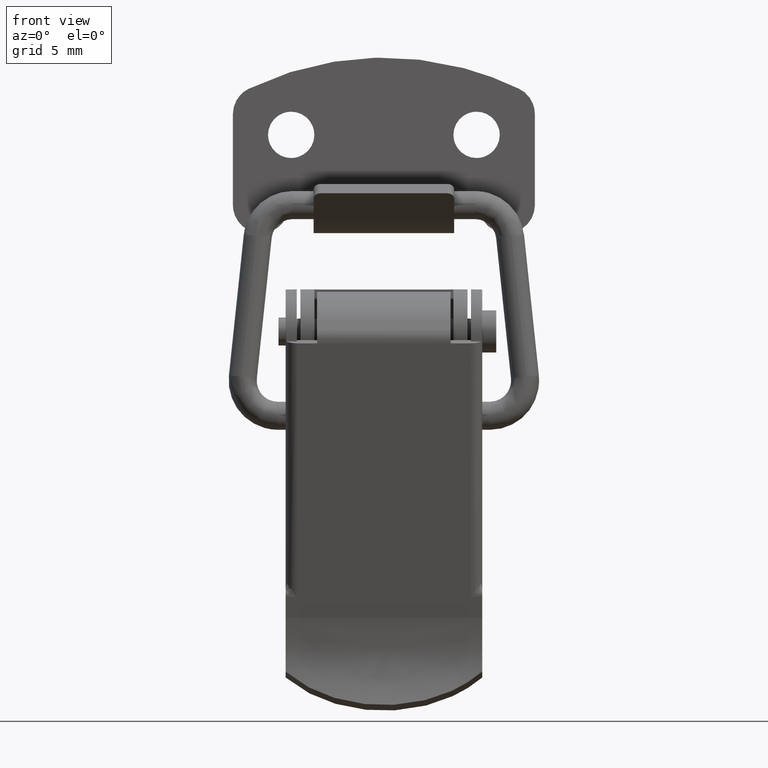
[diagram: clean part render]
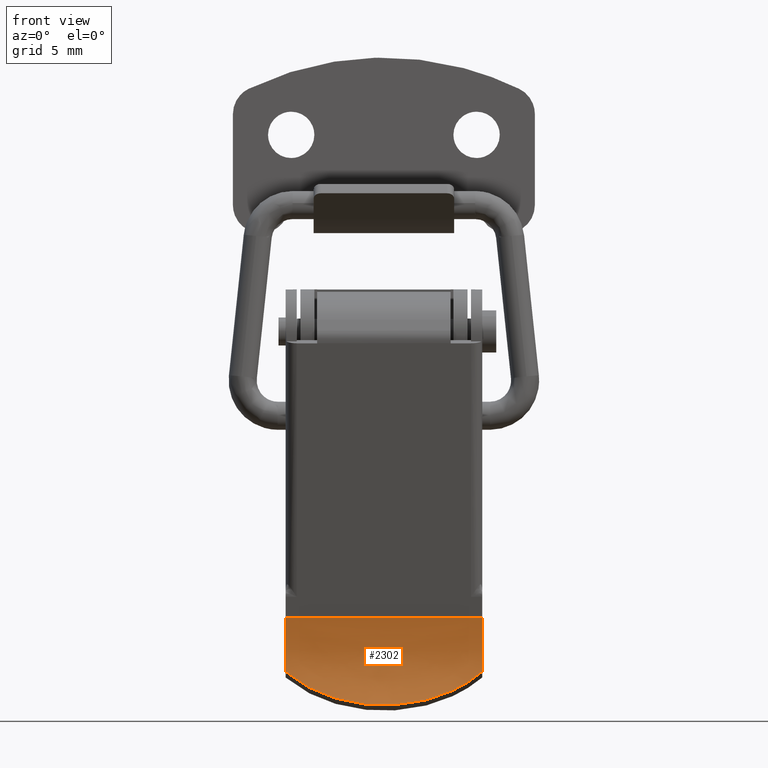
[diagram: same view with one face highlighted and labeled with its STEP entity id]
A machine part, front view. The second image highlights one B-rep face of the part: STEP entity #2302.
In plain terms, the highlighted face is a freeform B-spline surface patch.
Its self-contained STEP definition (entity closure, byte-faithful):
#2210=CARTESIAN_POINT('',(-7.349999999999776,0.622989485484737,-29.176317330772900));
#2211=CARTESIAN_POINT('',(7.358749999999996,0.622989485484737,-29.176317330772900));
#2212=CARTESIAN_POINT('',(-7.349999999999777,1.751511332431309,-32.720992885410126));
#2213=CARTESIAN_POINT('',(7.358749999999996,1.751511332431309,-32.720992885410126));
#2214=CARTESIAN_POINT('',(-7.349999999999776,-0.231698218330431,-35.868240289801122));
#2215=CARTESIAN_POINT('',(7.358749999999996,-0.231698218330431,-35.868240289801122));
#2223=(BOUNDED_SURFACE()B_SPLINE_SURFACE(1,2,((#2210,#2212,#2214),(#2211,#2213,#2215)),.UNSPECIFIED.,.F.,.F.,.U.)B_SPLINE_SURFACE_WITH_KNOTS((2,2),(3,3),(0.0,14.708749999999769),(0.0,7.076156969564746),.UNSPECIFIED.)GEOMETRIC_REPRESENTATION_ITEM()RATIONAL_B_SPLINE_SURFACE(((1.0,0.904798605692590,0.995673933317529),(1.0,0.904798605692590,0.995673933317529)))REPRESENTATION_ITEM('')SURFACE());
#2224=CARTESIAN_POINT('',(-6.999999999999780,0.835069121254117,-33.219328976437602));
#2225=VERTEX_POINT('',#2224);
#2226=CARTESIAN_POINT('',(-6.999999999999780,0.683907125467206,-29.376695583753701));
#2227=VERTEX_POINT('',#2226);
#2228=CARTESIAN_POINT('',(-6.999999999999780,0.835069121254117,-33.219328976437602));
#2229=CARTESIAN_POINT('',(-6.999999999999803,0.941381498587026,-32.704269710311017));
#2230=CARTESIAN_POINT('',(-6.999999999999774,1.026304524975873,-31.895699927578299));
#2231=CARTESIAN_POINT('',(-6.999999999999780,0.965523535921614,-30.600750781150641));
#2232=CARTESIAN_POINT('',(-6.999999999999787,0.819068078359886,-29.842957989121260));
#2233=CARTESIAN_POINT('',(-6.999999999999780,0.683907125467206,-29.376695583753701));
#2234=B_SPLINE_CURVE_WITH_KNOTS('',3,(#2228,#2229,#2230,#2231,#2232,#2233),.UNSPECIFIED.,.F.,.U.,(4,1,1,4),(2.956982E-009,1.577731468665454,2.427273317419144,3.883637406372918),.UNSPECIFIED.);
#2235=EDGE_CURVE('',#2225,#2227,#2234,.T.);
#2236=ORIENTED_EDGE('',*,*,#2235,.F.);
#2237=CARTESIAN_POINT('',(7.0,0.835069121254140,-33.219328976437453));
#2238=VERTEX_POINT('',#2237);
#2239=CARTESIAN_POINT('',(-6.999999999999767,0.835069121254117,-33.219328976437573));
#2240=CARTESIAN_POINT('',(-6.760551533657410,0.793034553099803,-33.423121597051242));
#2241=CARTESIAN_POINT('',(-6.511182356318367,0.745504334997731,-33.613545289296141));
#2242=CARTESIAN_POINT('',(-6.122276794476321,0.669749377059937,-33.879979435251151));
#2243=CARTESIAN_POINT('',(-5.990163925139838,0.643748629580225,-33.965586403054857));
#2244=CARTESIAN_POINT('',(-5.720957062060426,0.590824504858958,-34.130484003532679));
#2245=CARTESIAN_POINT('',(-5.584682711657642,0.564063864960892,-34.209269597503372));
#2246=CARTESIAN_POINT('',(-5.171515079573037,0.483822634987860,-34.434841220747657));
#2247=CARTESIAN_POINT('',(-4.890034913284323,0.430354093735956,-34.571024266144903));
#2248=CARTESIAN_POINT('',(-4.315292314671454,0.327230790903027,-34.817209854161263));
#2249=CARTESIAN_POINT('',(-4.022029826149293,0.277567630272626,-34.927208831717969));
#2250=CARTESIAN_POINT('',(-3.573312478380241,0.208314188468968,-35.073575844119240));
#2251=CARTESIAN_POINT('',(-3.422267331306168,0.186099600955027,-35.119253178327860));
#2252=CARTESIAN_POINT('',(-3.117207639787527,0.143772042482091,-35.204475881915940));
#2253=CARTESIAN_POINT('',(-2.963547953740271,0.123714143280994,-35.243908756508681));
#2254=CARTESIAN_POINT('',(-2.501973082305896,0.067610699483931,-35.352322784568962));
#2255=CARTESIAN_POINT('',(-2.192378103279314,0.035497044953319,-35.411760148533212));
#2256=CARTESIAN_POINT('',(-1.569516216252607,-0.016615363060055,-35.506493314267843));
#2257=CARTESIAN_POINT('',(-1.256249170827546,-0.036616583875844,-35.541786641327633));
#2258=CARTESIAN_POINT('',(-0.626041584336954,-0.063419207184586,-35.588802275904222));
#2259=CARTESIAN_POINT('',(-0.309101228507592,-0.070221205031839,-35.600525809779533));
#2260=CARTESIAN_POINT('',(0.169130266944533,-0.070010075715950,-35.600159760308003));
#2261=CARTESIAN_POINT('',(0.329317698314444,-0.068194490979605,-35.597016447915607));
#2262=CARTESIAN_POINT('',(0.647822729789409,-0.061136130408811,-35.584740437933000));
#2263=CARTESIAN_POINT('',(0.806407776151389,-0.055899975337069,-35.575619027648322));
#2264=CARTESIAN_POINT('',(1.280192135367984,-0.035258799700187,-35.539390235089627));
#2265=CARTESIAN_POINT('',(1.593424485559026,-0.014909092857910,-35.503446637391548));
#2266=CARTESIAN_POINT('',(2.214713507106372,0.037682540080382,-35.407727902128293));
#2267=CARTESIAN_POINT('',(2.522770085729227,0.069926480170222,-35.347953272448777));
#2268=CARTESIAN_POINT('',(3.133657764623330,0.144615947965623,-35.203406143170788));
#2269=CARTESIAN_POINT('',(3.436489237452925,0.187065993789900,-35.118638148813623));
#2270=CARTESIAN_POINT('',(3.811653461834220,0.245135583012242,-34.995710820919079));
#2271=CARTESIAN_POINT('',(3.886613763714494,0.257014324283485,-34.970239285089683));
#2272=CARTESIAN_POINT('',(4.035552378812039,0.281124300824890,-34.917778931111840));
#2273=CARTESIAN_POINT('',(4.257563596340524,0.317827017155446,-34.836795043819983));
#2274=CARTESIAN_POINT('',(4.475411160277107,0.355908567957285,-34.748901025947269));
#2275=CARTESIAN_POINT('',(4.905594848950629,0.433258337147649,-34.563756709487507));
#2276=CARTESIAN_POINT('',(5.185044903853165,0.486422614897159,-34.427874043188858));
#2277=CARTESIAN_POINT('',(5.729238416087224,0.592166711984147,-34.129912936782560));
#2278=CARTESIAN_POINT('',(5.993981609625665,0.644756814550964,-33.967837401444250));
#2279=CARTESIAN_POINT('',(6.508429337705085,0.744969997986891,-33.615466647015452));
#2280=CARTESIAN_POINT('',(6.758134704577254,0.792610284912795,-33.425178540406897));
#2281=CARTESIAN_POINT('',(7.000000000000051,0.835069121254127,-33.219328976437538));
#2282=B_SPLINE_CURVE_WITH_KNOTS('',3,(#2239,#2240,#2241,#2242,#2243,#2244,#2245,#2246,#2247,#2248,#2249,#2250,#2251,#2252,#2253,#2254,#2255,#2256,#2257,#2258,#2259,#2260,#2261,#2262,#2263,#2264,#2265,#2266,#2267,#2268,#2269,#2270,#2271,#2272,#2273,#2274,#2275,#2276,#2277,#2278,#2279,#2280,#2281),.UNSPECIFIED.,.F.,.U.,(4,2,2,2,2,2,2,2,2,2,2,2,2,2,2,2,2,1,2,2,2,4),(0.0,0.062499999999999,0.093749999999999,0.124999999999998,0.187499999999998,0.249999999999997,0.281249999999997,0.312499999999997,0.374999999999996,0.437499999999996,0.499999999999996,0.531249999999996,0.562499999999995,0.624999999999995,0.687499999999995,0.749999999999995,0.765624999999995,0.781249999999995,0.812499999999995,0.874999999999997,0.937499999999998,1.0),.UNSPECIFIED.);
#2283=EDGE_CURVE('',#2225,#2238,#2282,.T.);
#2284=ORIENTED_EDGE('',*,*,#2283,.T.);
#2285=CARTESIAN_POINT('',(7.0,0.683907125467206,-29.376695583753701));
#2286=VERTEX_POINT('',#2285);
#2287=CARTESIAN_POINT('',(7.0,0.835069121254140,-33.219328976437453));
#2288=CARTESIAN_POINT('',(7.000000000000017,0.961864323533372,-32.605225411540673));
#2289=CARTESIAN_POINT('',(6.999999999999973,1.073371655924639,-31.306509388978590));
#2290=CARTESIAN_POINT('',(7.000000000000006,0.869869994888853,-30.017781159482009));
#2291=CARTESIAN_POINT('',(7.0,0.683907125467206,-29.376695583753701));
#2292=B_SPLINE_CURVE_WITH_KNOTS('',3,(#2287,#2288,#2289,#2290,#2291),.UNSPECIFIED.,.F.,.U.,(4,1,4),(2.956221E-009,1.881141027989325,3.883637406372770),.UNSPECIFIED.);
#2293=EDGE_CURVE('',#2238,#2286,#2292,.T.);
#2294=ORIENTED_EDGE('',*,*,#2293,.T.);
#2295=CARTESIAN_POINT('',(-6.999999999999780,0.683907125467206,-29.376695583753701));
#2296=CARTESIAN_POINT('',(7.0,0.683907125467206,-29.376695583753701));
#2297=QUASI_UNIFORM_CURVE('',1,(#2295,#2296),.UNSPECIFIED.,.F.,.U.);
#2298=EDGE_CURVE('',#2227,#2286,#2297,.T.);
#2299=ORIENTED_EDGE('',*,*,#2298,.F.);
#2300=EDGE_LOOP('',(#2236,#2284,#2294,#2299));
#2301=FACE_OUTER_BOUND('',#2300,.T.);
#2302=ADVANCED_FACE('',(#2301),#2223,.F.);